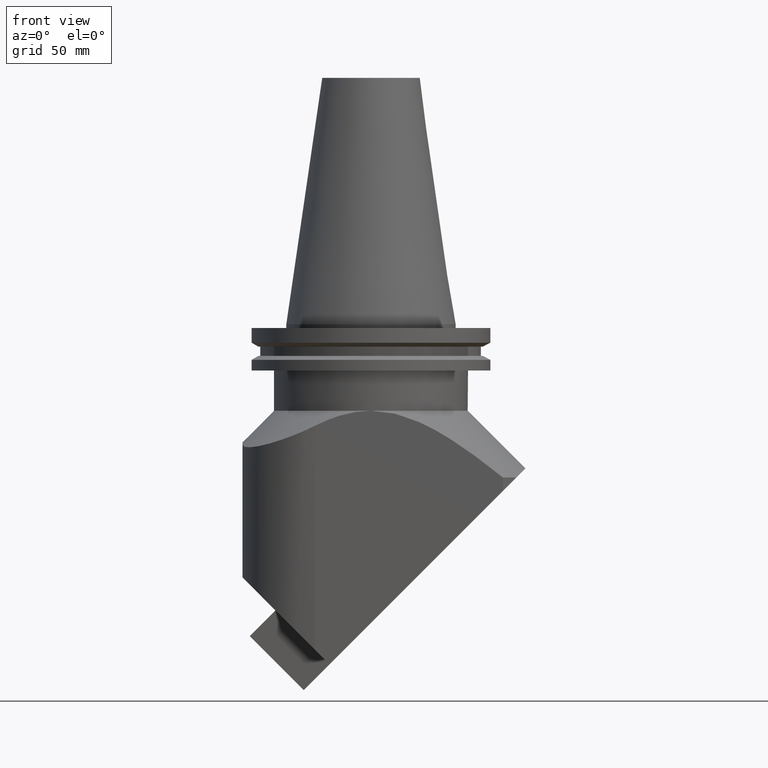
[diagram: clean part render]
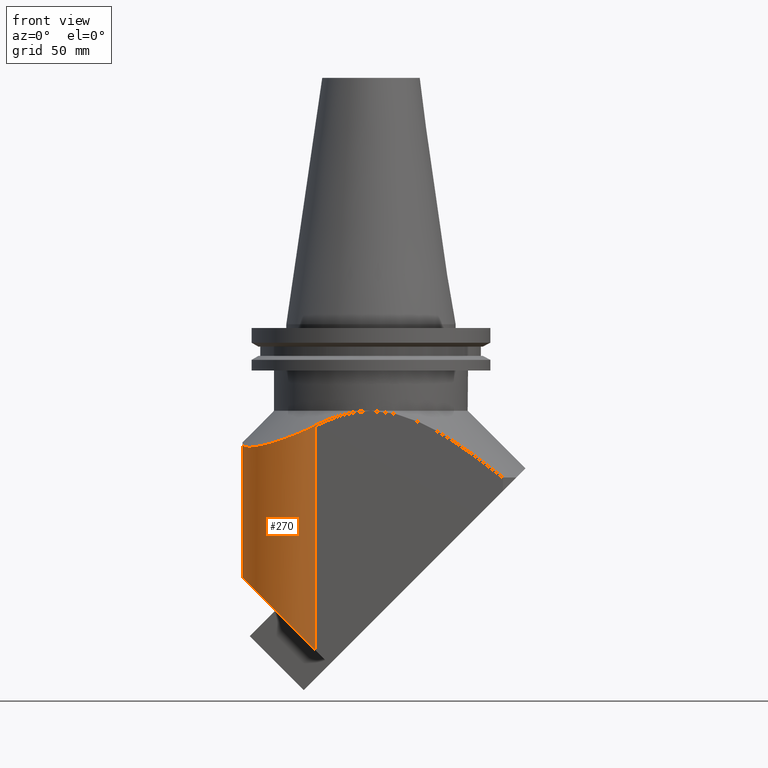
[diagram: same view with one face highlighted and labeled with its STEP entity id]
A machine part, front view. The second image highlights one B-rep face of the part: STEP entity #270.
In plain terms, the highlighted cylindrical surface (partial cylindrical patch) has radius 30 mm, axis along (-0, 0, 1).
Its self-contained STEP definition (entity closure, byte-faithful):
#133=EDGE_CURVE('Unnamed[1]',#366,#367,#368,.T.);
#228=EDGE_CURVE('Unnamed[1]',#366,#384,#506,.T.);
#253=EDGE_CURVE('Unnamed[1]',#367,#401,#539,.T.);
#260=EDGE_CURVE('Unnamed[1]',#384,#401,#548,.T.);
#270=ADVANCED_FACE('Unnamed[1]',(#558),#559,.T.);
#366=VERTEX_POINT('',#676);
#367=VERTEX_POINT('',#677);
#368=LINE('',#678,#679);
#384=VERTEX_POINT('',#700);
#401=VERTEX_POINT('',#723);
#506=ELLIPSE('',#921,42.4264068712006,30.0000000000011);
#539=B_SPLINE_CURVE_WITH_KNOTS('',3,(#968,#969,#970,#971,#972,#973,#974,#975,#976,#977,#978,#979,#980,#981,#982,#983,#984,#985,#986,#987,#988,#989,#990,#991,#992,#993),.UNSPECIFIED.,.F.,.F.,(4,2,2,2,2,2,2,2,2,2,2,2,4),(35.1092462426969,39.3614813545177,43.6137164663384,47.7499436090603,51.8861707517821,56.0223978945039,60.1586250372258,64.4660943871932,68.7735637371606,73.081033087128,77.3885024370955,82.162412155041,86.9363218729865),.UNSPECIFIED.);
#548=LINE('',#1006,#1007);
#558=FACE_OUTER_BOUND('',#1022,.T.);
#559=CYLINDRICAL_SURFACE('',#1023,30.0000000000011);
#676=CARTESIAN_POINT('',(-53.0000000000023,-10.0000000000001,-104.339719282773));
#677=CARTESIAN_POINT('',(-53.0000000000034,-10.0000000000005,-49.5851685614582));
#678=CARTESIAN_POINT('',(-53.0000000000033,-10.0000000000006,-292.69346914569));
#679=VECTOR('',#1151,1.0);
#700=CARTESIAN_POINT('',(-23.0000000000022,-40.0000000000011,-134.339719282782));
#723=CARTESIAN_POINT('',(-23.0000000000023,-40.0000000000011,-41.7911103010484));
#921=AXIS2_PLACEMENT_3D('',#1301,#1302,#1303);
#968=CARTESIAN_POINT('',(-52.9593035033766,-8.43790730340121,-49.2773111505036));
#969=CARTESIAN_POINT('',(-53.0370536106371,-9.92907373928715,-49.5887182147236));
#970=CARTESIAN_POINT('',(-53.0023317264908,-11.4359962949926,-49.8521579349336));
#971=CARTESIAN_POINT('',(-52.7141662726655,-14.3897969314765,-50.2732033613201));
#972=CARTESIAN_POINT('',(-52.4606648610132,-15.8366681502118,-50.4308176180756));
#973=CARTESIAN_POINT('',(-51.7907284856102,-18.5430627189799,-50.643164874389));
#974=CARTESIAN_POINT('',(-51.3530857281156,-19.9110313604388,-50.7087441769809));
#975=CARTESIAN_POINT('',(-50.2583098023445,-22.6139034264923,-50.7423139882546));
#976=CARTESIAN_POINT('',(-49.601171166794,-23.9488044045985,-50.7103231746958));
#977=CARTESIAN_POINT('',(-48.0986723845156,-26.4999423146156,-50.5457830346668));
#978=CARTESIAN_POINT('',(-47.2524827560013,-27.717631113037,-50.4131313626718));
#979=CARTESIAN_POINT('',(-45.4330716546074,-29.9713461797311,-50.0593919422399));
#980=CARTESIAN_POINT('',(-44.4598921072673,-31.0074008377409,-49.8382694324222));
#981=CARTESIAN_POINT('',(-42.4366462971564,-32.8956320488575,-49.3255919262779));
#982=CARTESIAN_POINT('',(-41.3002727849837,-33.8175293012255,-49.0101031901603));
#983=CARTESIAN_POINT('',(-38.8761401134779,-35.4975069594775,-48.2749943461331));
#984=CARTESIAN_POINT('',(-37.5884384242294,-36.2556562421191,-47.8553421321938));
#985=CARTESIAN_POINT('',(-34.9385224460806,-37.5618162643594,-46.9298671482661));
#986=CARTESIAN_POINT('',(-33.5750798604427,-38.1105496027222,-46.4235403304744));
#987=CARTESIAN_POINT('',(-30.8598070191478,-38.9872169537478,-45.354960983117));
#988=CARTESIAN_POINT('',(-29.5080376891829,-39.3152626960264,-44.7926453088489));
#989=CARTESIAN_POINT('',(-26.7699085963924,-39.7980540244764,-43.595542314365));
#990=CARTESIAN_POINT('',(-25.268383337525,-39.952525539021,-42.9040785893838));
#991=CARTESIAN_POINT('',(-22.2366164881738,-40.0285962871414,-41.4212575433723));
#992=CARTESIAN_POINT('',(-20.7064239775828,-39.9503313962157,-40.6298068494807));
#993=CARTESIAN_POINT('',(-19.2076260398368,-39.7593329855749,-39.8058538444491));
#1006=CARTESIAN_POINT('',(-23.0000000000022,-40.0000000000012,-292.69346914569));
#1007=VECTOR('',#1345,1.0);
#1022=EDGE_LOOP('',(#1350,#1351,#1352,#1353));
#1023=AXIS2_PLACEMENT_3D('',#1354,#1355,#1356);
#1151=DIRECTION('',(-1.22464679914735E-016,2.22044604925031E-016,1.0));
#1301=CARTESIAN_POINT('',(-23.0000000000023,-10.0000000000001,-134.339719282782));
#1302=DIRECTION('',(0.707106781186652,-1.57009245868447E-016,0.707106781186443));
#1303=DIRECTION('',(-0.707106781186443,5.57623343228646E-016,0.707106781186652));
#1345=DIRECTION('',(-1.22464679914735E-016,2.22044604925031E-016,1.0));
#1350=ORIENTED_EDGE('',*,*,#228,.T.);
#1351=ORIENTED_EDGE('',*,*,#260,.T.);
#1352=ORIENTED_EDGE('',*,*,#253,.F.);
#1353=ORIENTED_EDGE('',*,*,#133,.F.);
#1354=CARTESIAN_POINT('',(-23.0000000000023,-10.0000000000001,-292.69346914569));
#1355=DIRECTION('',(-1.22464679914735E-016,2.22044604925031E-016,1.0));
#1356=DIRECTION('',(5.66553889764798E-016,1.0,-2.22044604925031E-016));